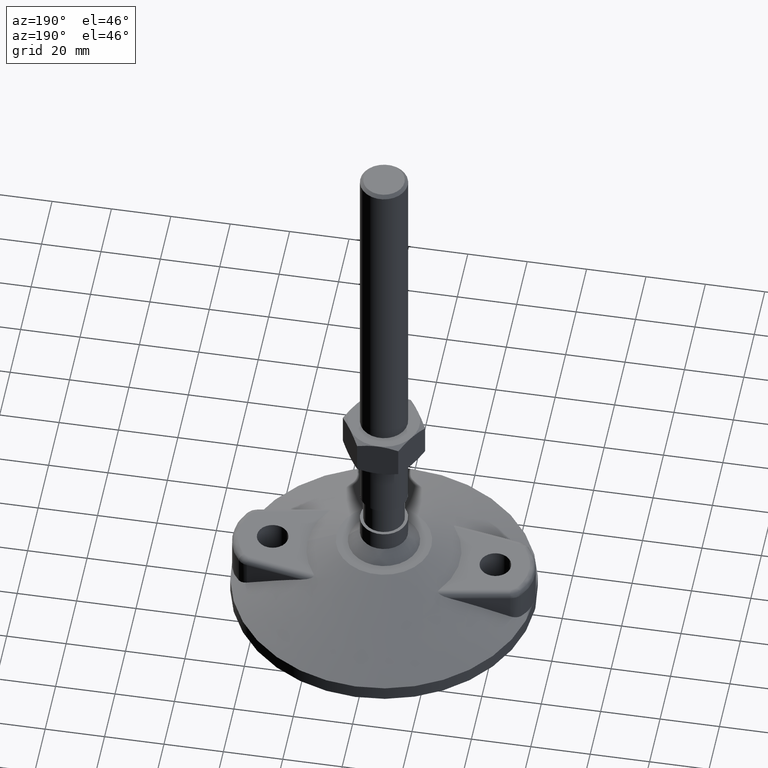
[diagram: clean part render]
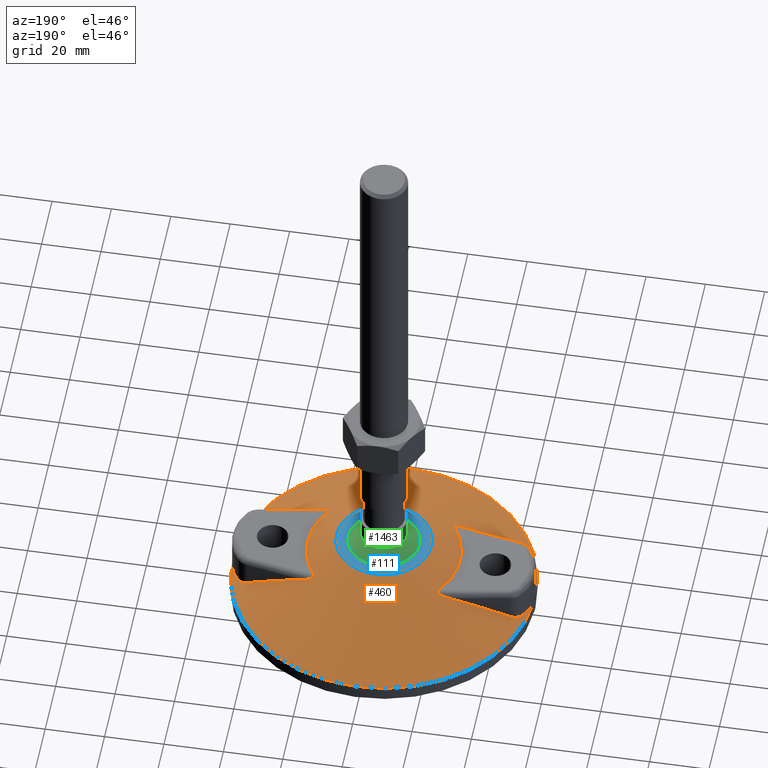
[diagram: same view with three faces highlighted in distinct colors, each labeled with its STEP entity id]
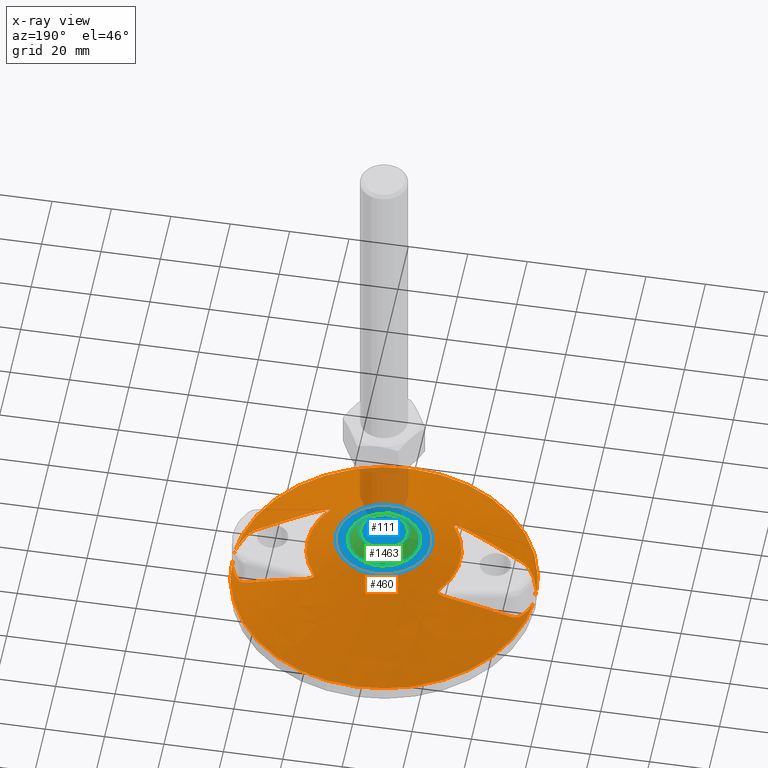
[diagram: x-ray of the same camera — body ghosted, the three highlighted faces saturated]
A machine part, auxiliary view with three faces highlighted in distinct colors.
The next image is the same camera in x-ray (body ghosted, the three faces saturated) — at least one of them is partly hidden behind the body in this view.
Their STEP definitions:

[orange] entity #460 — the highlighted face is a freeform B-spline surface patch.
#9=CARTESIAN_POINT('',(50.999999999999091,-0.000000129048203,5.000001508065495));
#10=VERTEX_POINT('',#9);
#26=CARTESIAN_POINT('',(-50.980811147480381,1.398890411647699,5.000001544170242));
#27=VERTEX_POINT('',#26);
#34=CARTESIAN_POINT('',(0.0,-0.000000129048203,5.000001508065495));
#35=DIRECTION('',(0.0,-0.000000025809560,1.000000000000000));
#36=DIRECTION('',(1.0,0.0,0.0));
#37=AXIS2_PLACEMENT_3D('',#34,#35,#36);
#38=CIRCLE('',#37,50.999999999999091);
#39=EDGE_CURVE('',#10,#27,#38,.T.);
#51=CARTESIAN_POINT('',(50.980811147480608,-1.398890669737739,5.000001471960742));
#52=VERTEX_POINT('',#51);
#59=CARTESIAN_POINT('',(-50.999999999999091,-0.000000128900865,5.000001508065493));
#60=VERTEX_POINT('',#59);
#61=CARTESIAN_POINT('',(0.0,-0.000000129048203,5.000001508065495));
#62=DIRECTION('',(0.0,-0.000000025809560,1.000000000000000));
#63=DIRECTION('',(1.0,0.0,0.0));
#64=AXIS2_PLACEMENT_3D('',#61,#62,#63);
#65=CIRCLE('',#64,50.999999999999091);
#66=EDGE_CURVE('',#60,#52,#65,.T.);
#91=CARTESIAN_POINT('',(15.999999999999091,-0.000000593619916,23.000001508065484));
#92=VERTEX_POINT('',#91);
#93=CARTESIAN_POINT('',(-15.999999999999091,-0.000000593619916,23.000001508065484));
#94=VERTEX_POINT('',#93);
#95=CARTESIAN_POINT('',(0.0,-0.000000593619916,23.000001508065484));
#96=DIRECTION('',(0.0,-0.000000025809560,1.000000000000000));
#97=DIRECTION('',(1.0,0.0,0.0));
#98=AXIS2_PLACEMENT_3D('',#95,#96,#97);
#99=CIRCLE('',#98,15.999999999999091);
#100=EDGE_CURVE('',#92,#94,#99,.T.);
#102=CARTESIAN_POINT('',(0.0,-0.000000593619916,23.000001508065484));
#103=DIRECTION('',(0.0,-0.000000025809560,1.000000000000000));
#104=DIRECTION('',(1.0,0.0,0.0));
#105=AXIS2_PLACEMENT_3D('',#102,#103,#104);
#106=CIRCLE('',#105,15.999999999999091);
#107=EDGE_CURVE('',#94,#92,#106,.T.);
#176=CARTESIAN_POINT('',(50.999999999999091,-0.000000129048203,5.000001508065495));
#177=CARTESIAN_POINT('',(50.999999999999453,50.999999870950880,5.000002824353048));
#178=CARTESIAN_POINT('',(3.649714E-013,50.999999870951235,5.000002824353048));
#179=CARTESIAN_POINT('',(-50.999999999998728,50.999999870951598,5.000002824353048));
#180=CARTESIAN_POINT('',(-50.999999999999091,-0.000000129047473,5.000001508065495));
#181=CARTESIAN_POINT('',(-50.999999999999453,-51.000000129046541,5.000000191777941));
#182=CARTESIAN_POINT('',(-3.649714E-013,-51.000000129046917,5.000000191777941));
#183=CARTESIAN_POINT('',(50.999999999998728,-51.000000129047280,5.000000191777941));
#184=CARTESIAN_POINT('',(50.999999999999091,-0.000000129048203,5.000001508065495));
#185=CARTESIAN_POINT('',(15.999999999999091,-0.000000593619916,23.000001508065484));
#186=CARTESIAN_POINT('',(15.999999999999091,15.999999406379169,23.000001921018441));
#187=CARTESIAN_POINT('',(0.0,15.999999406379169,23.000001921018441));
#188=CARTESIAN_POINT('',(-15.999999999999091,15.999999406379169,23.000001921018441));
#189=CARTESIAN_POINT('',(-15.999999999999091,-0.000000593619916,23.000001508065484));
#190=CARTESIAN_POINT('',(-15.999999999999091,-16.000000593618999,23.000001095112527));
#191=CARTESIAN_POINT('',(0.0,-16.000000593618999,23.000001095112527));
#192=CARTESIAN_POINT('',(15.999999999999091,-16.000000593618999,23.000001095112527));
#193=CARTESIAN_POINT('',(15.999999999999091,-0.000000593619916,23.000001508065484));
#201=(BOUNDED_SURFACE()B_SPLINE_SURFACE(2,1,((#176,#185),(#177,#186),(#178,#187),(#179,#188),(#180,#189),(#181,#190),(#182,#191),(#183,#192),(#184,#193)),.UNSPECIFIED.,.T.,.F.,.U.)B_SPLINE_SURFACE_WITH_KNOTS((3,2,2,2,3),(2,2),(0.0,0.250000000000000,0.500000000000000,0.750000000000000,1.0),(-39.357337308308850,0.0),.UNSPECIFIED.)GEOMETRIC_REPRESENTATION_ITEM()RATIONAL_B_SPLINE_SURFACE(((1.0,1.0),(0.707106781186548,0.707106781186548),(1.0,1.0),(0.707106781186548,0.707106781186548),(1.0,1.0),(0.707106781186548,0.707106781186548),(1.0,1.0),(0.707106781186548,0.707106781186548),(1.0,1.0)))REPRESENTATION_ITEM('')SURFACE());
#202=ORIENTED_EDGE('',*,*,#107,.F.);
#203=ORIENTED_EDGE('',*,*,#100,.F.);
#204=CARTESIAN_POINT('',(25.722222222221262,-0.000000464572622,18.000001508065491));
#205=VERTEX_POINT('',#204);
#206=CARTESIAN_POINT('',(25.722222222221305,-0.000000464572218,18.000001508065491));
#207=DIRECTION('',(-0.889287802318147,-0.000000011803942,0.457348012620761));
#208=VECTOR('',#207,10.932593696752450);
#209=LINE('',#206,#208);
#210=EDGE_CURVE('',#205,#92,#209,.T.);
#211=ORIENTED_EDGE('',*,*,#210,.F.);
#212=CARTESIAN_POINT('',(21.143162613055893,14.649210803179813,18.000001886155328));
#213=VERTEX_POINT('',#212);
#214=CARTESIAN_POINT('',(3.944305E-031,-0.000000464571713,18.000001508065484));
#215=DIRECTION('',(1.381194E-016,0.000000025809560,-1.000000000000000));
#216=DIRECTION('',(1.0,-3.535833E-014,1.381185E-016));
#217=AXIS2_PLACEMENT_3D('',#214,#215,#216);
#218=CIRCLE('',#217,25.722222222221262);
#219=EDGE_CURVE('',#213,#205,#218,.T.);
#220=ORIENTED_EDGE('',*,*,#219,.F.);
#221=CARTESIAN_POINT('',(24.905502350737606,16.016662072224790,16.000001921448693));
#222=VERTEX_POINT('',#221);
#223=CARTESIAN_POINT('',(24.905510881194914,16.016660568076077,16.000001921448654));
#224=CARTESIAN_POINT('',(24.368523235515340,16.111345973001335,16.205941526100055));
#225=CARTESIAN_POINT('',(23.614843569668210,16.201820354531264,16.501664863725495));
#226=CARTESIAN_POINT('',(22.642513514363827,16.202442730530493,16.909983411453684));
#227=CARTESIAN_POINT('',(22.054701576207208,16.145200728676173,17.171945831881132));
#228=CARTESIAN_POINT('',(21.600594150520237,16.033002141560246,17.394007420114097));
#229=CARTESIAN_POINT('',(21.321402885352654,15.909207563088785,17.547172561378328));
#230=CARTESIAN_POINT('',(21.139885871935576,15.788512299711329,17.659107641335048));
#231=CARTESIAN_POINT('',(21.015379545618543,15.662101873501342,17.749315618801226));
#232=CARTESIAN_POINT('',(20.927845829550506,15.504352220954388,17.833851213924497));
#233=CARTESIAN_POINT('',(20.893136377268092,15.347567159990831,17.896116149656070));
#234=CARTESIAN_POINT('',(20.902600165130252,15.164306328896600,17.947785129375028));
#235=CARTESIAN_POINT('',(20.970704490707931,14.926545626580264,17.990898343861652));
#236=CARTESIAN_POINT('',(21.071463721815007,14.752693597506550,18.000001888825494));
#237=CARTESIAN_POINT('',(21.143162613054983,14.649210803180722,18.000001886154642));
#238=B_SPLINE_CURVE_WITH_KNOTS('',3,(#223,#224,#225,#226,#227,#228,#229,#230,#231,#232,#233,#234,#235,#236,#237),.UNSPECIFIED.,.F.,.U.,(4,1,1,1,1,1,1,1,1,1,1,1,4),(0.0,1.749855970408196,2.436491691366094,3.161766479691344,3.684761264973928,3.985205893616242,4.183650107324858,4.418106244655253,4.577809481138798,4.777218453561154,4.928524910696078,5.145883000621560,5.524646632267313),.UNSPECIFIED.);
#239=EDGE_CURVE('',#222,#213,#238,.T.);
#240=ORIENTED_EDGE('',*,*,#239,.F.);
#241=CARTESIAN_POINT('',(43.946101486224279,12.659290929779672,7.708687347685885));
#242=VERTEX_POINT('',#241);
#243=CARTESIAN_POINT('',(24.905507839652113,16.016661104380400,16.000016678355045));
#244=CARTESIAN_POINT('',(25.390835917430426,15.931084674577200,15.813883571990967));
#245=CARTESIAN_POINT('',(27.419485481093616,15.573379042499504,15.023614962956010));
#246=CARTESIAN_POINT('',(30.862722368553705,14.966243514867529,13.605555621128904));
#247=CARTESIAN_POINT('',(36.735391466343799,13.930733570074153,11.051469760713720));
#248=CARTESIAN_POINT('',(41.048517740183570,13.170213087987577,9.067910575075938));
#249=CARTESIAN_POINT('',(43.946101486224279,12.659290929779672,7.708687347685883));
#250=B_SPLINE_CURVE_WITH_KNOTS('',3,(#243,#244,#245,#246,#247,#248,#249),.UNSPECIFIED.,.F.,.U.,(4,1,1,1,4),(6.034625624640960,7.615012138124984,12.653535907105029,17.352697149465612,27.076083084423665),.UNSPECIFIED.);
#251=EDGE_CURVE('',#222,#242,#250,.T.);
#252=ORIENTED_EDGE('',*,*,#251,.T.);
#253=CARTESIAN_POINT('',(46.944446728756247,10.905348677401889,6.442841662547860));
#254=VERTEX_POINT('',#253);
#255=CARTESIAN_POINT('',(43.946101486223824,12.659290929779672,7.708687347685880));
#256=CARTESIAN_POINT('',(44.157986439093520,12.621929898347844,7.609294551923363));
#257=CARTESIAN_POINT('',(44.744527941442811,12.479245719588107,7.339327265776765));
#258=CARTESIAN_POINT('',(45.588500422862580,12.102887562755313,6.971973499076979));
#259=CARTESIAN_POINT('',(46.374884227298708,11.527298705571411,6.653802342681258));
#260=CARTESIAN_POINT('',(46.777856537535172,11.108539754418416,6.502648795603792));
#261=CARTESIAN_POINT('',(46.944446728756247,10.905348677401889,6.442841662547860));
#262=B_SPLINE_CURVE_WITH_KNOTS('',3,(#255,#256,#257,#258,#259,#260,#261),.UNSPECIFIED.,.F.,.U.,(4,1,1,1,4),(0.0,0.711433557767527,1.979458702356273,2.964281160197235,3.773582366587916),.UNSPECIFIED.);
#263=EDGE_CURVE('',#242,#254,#262,.T.);
#264=ORIENTED_EDGE('',*,*,#263,.T.);
#265=CARTESIAN_POINT('',(46.944446728754656,10.905348677400070,6.442841662547856));
#266=CARTESIAN_POINT('',(47.428776176401016,10.314609082368406,6.268963743890299));
#267=CARTESIAN_POINT('',(48.577765737010168,8.715635518449744,5.860195068171113));
#268=CARTESIAN_POINT('',(49.961713408914648,5.909106735981368,5.375059048036866));
#269=CARTESIAN_POINT('',(50.789649193219930,2.813004850809193,5.083041474121105));
#270=CARTESIAN_POINT('',(50.978817927457385,0.835834614530540,5.010895166944205));
#271=CARTESIAN_POINT('',(50.999999999997272,-0.000000129049113,5.000001508065492));
#272=B_SPLINE_CURVE_WITH_KNOTS('',3,(#265,#266,#267,#268,#269,#270,#271),.UNSPECIFIED.,.F.,.U.,(4,1,1,1,4),(0.0,2.352015631416472,6.017033930442234,9.448856451936507,11.959644487945123),.UNSPECIFIED.);
#273=EDGE_CURVE('',#254,#10,#272,.T.);
#274=ORIENTED_EDGE('',*,*,#273,.T.);
#275=ORIENTED_EDGE('',*,*,#39,.T.);
#276=CARTESIAN_POINT('',(-48.014549455435144,10.365246472392755,5.966540124906850));
#277=VERTEX_POINT('',#276);
#278=CARTESIAN_POINT('',(-50.980811147480381,1.398890411647699,5.000001544170242));
#279=CARTESIAN_POINT('',(-50.945273659122563,2.071710654914568,5.008779996242147));
#280=CARTESIAN_POINT('',(-50.771090824890166,3.660385520460295,5.059622875929401));
#281=CARTESIAN_POINT('',(-50.163628544978110,6.112734368182828,5.251830312585487));
#282=CARTESIAN_POINT('',(-49.189094067773226,8.436264443294022,5.571000129794797));
#283=CARTESIAN_POINT('',(-48.384189615349101,9.808622580580050,5.841126318510642));
#284=CARTESIAN_POINT('',(-48.014549455435144,10.365246472392755,5.966540124906857));
#285=B_SPLINE_CURVE_WITH_KNOTS('',3,(#278,#279,#280,#281,#282,#283,#284),.UNSPECIFIED.,.F.,.U.,(4,1,1,1,4),(0.0,2.022629176124613,4.786599737474235,7.577207433580201,9.617888303699404),.UNSPECIFIED.);
#286=EDGE_CURVE('',#27,#277,#285,.T.);
#287=ORIENTED_EDGE('',*,*,#286,.T.);
#288=CARTESIAN_POINT('',(-44.717563838551314,12.523261311823262,7.346146955925327));
#289=VERTEX_POINT('',#288);
#290=CARTESIAN_POINT('',(-48.014549455437191,10.365246472393665,5.966540124906855));
#291=CARTESIAN_POINT('',(-47.848019610628057,10.616016005504207,6.023041403666531));
#292=CARTESIAN_POINT('',(-47.430373086146801,11.135364655942794,6.173873751649253));
#293=CARTESIAN_POINT('',(-46.575999655821875,11.848622314048043,6.513739724137540));
#294=CARTESIAN_POINT('',(-45.627408135581959,12.311500732026616,6.924414571233965));
#295=CARTESIAN_POINT('',(-44.961285003187072,12.480286697689735,7.231408647349684));
#296=CARTESIAN_POINT('',(-44.717563838551314,12.523261311823262,7.346146955925345));
#297=B_SPLINE_CURVE_WITH_KNOTS('',3,(#290,#291,#292,#293,#294,#295,#296),.UNSPECIFIED.,.F.,.U.,(4,1,1,1,4),(0.0,0.920200352312294,2.038589351430508,3.470929525088265,4.289933056395647),.UNSPECIFIED.);
#298=EDGE_CURVE('',#277,#289,#297,.T.);
#299=ORIENTED_EDGE('',*,*,#298,.T.);
#300=CARTESIAN_POINT('',(-24.905512481630581,16.016660285876242,16.000001921447826));
#301=VERTEX_POINT('',#300);
#302=CARTESIAN_POINT('',(-44.717563838551314,12.523261311823262,7.346146955925343));
#303=CARTESIAN_POINT('',(-42.103382992252477,12.984211895713088,8.576843063353829));
#304=CARTESIAN_POINT('',(-37.068949754941968,13.871918247910799,10.905999733740305));
#305=CARTESIAN_POINT('',(-30.463058270814376,15.036715073709050,13.791943864851710));
#306=CARTESIAN_POINT('',(-26.457073137016426,15.743078295480691,15.405007122835212));
#307=CARTESIAN_POINT('',(-24.905512702027611,16.016660247012407,16.000002514044350));
#308=B_SPLINE_CURVE_WITH_KNOTS('',3,(#302,#303,#304,#305,#306,#307),.UNSPECIFIED.,.F.,.U.,(4,1,1,4),(0.0,8.777885019393677,16.852426233862033,21.904650565738230),.UNSPECIFIED.);
#309=EDGE_CURVE('',#289,#301,#308,.T.);
#310=ORIENTED_EDGE('',*,*,#309,.T.);
#311=CARTESIAN_POINT('',(-21.143162613054074,14.649210803180722,18.000001886154674));
#312=VERTEX_POINT('',#311);
#313=CARTESIAN_POINT('',(-24.905510881195255,16.016660568076077,16.000001921447833));
#314=CARTESIAN_POINT('',(-24.398850535092947,16.105998452134372,16.194311032893900));
#315=CARTESIAN_POINT('',(-23.675455406118999,16.194850019557634,16.477882146297038));
#316=CARTESIAN_POINT('',(-22.697547222115304,16.205997372511774,16.885983757464246));
#317=CARTESIAN_POINT('',(-22.074087466847914,16.151276337101081,17.162087724177383));
#318=CARTESIAN_POINT('',(-21.589488032419922,16.029317305356017,17.399721016416294));
#319=CARTESIAN_POINT('',(-21.313581800359088,15.904855232826776,17.551734601025391));
#320=CARTESIAN_POINT('',(-21.135184157297090,15.784479852546610,17.662286006387713));
#321=CARTESIAN_POINT('',(-21.012921411775324,15.658640739326074,17.751393124334868));
#322=CARTESIAN_POINT('',(-20.926966965925658,15.501704934008558,17.835024898076501));
#323=CARTESIAN_POINT('',(-20.893033775056210,15.345594530303970,17.896759141314647));
#324=CARTESIAN_POINT('',(-20.902897242830477,15.162886381249336,17.948090060926692));
#325=CARTESIAN_POINT('',(-20.971125866166176,14.925798509306333,17.990943266280588));
#326=CARTESIAN_POINT('',(-21.071652779407941,14.752420731252641,18.000001888817760));
#327=CARTESIAN_POINT('',(-21.143162613057029,14.649210803179813,18.000001886153949));
#328=B_SPLINE_CURVE_WITH_KNOTS('',3,(#313,#314,#315,#316,#317,#318,#319,#320,#321,#322,#323,#324,#325,#326,#327),.UNSPECIFIED.,.F.,.U.,(4,1,1,1,1,1,1,1,1,1,1,1,4),(0.0,1.650869725793001,2.339864675178765,3.177577409040687,3.698344464052970,3.994688378333339,4.190609264651903,4.422415376702809,4.580578724796375,4.779100976606481,4.930038451895313,5.146891845682602,5.524649116528213),.UNSPECIFIED.);
#329=EDGE_CURVE('',#301,#312,#328,.T.);
#330=ORIENTED_EDGE('',*,*,#329,.T.);
#331=CARTESIAN_POINT('',(-21.143162613054756,-14.649211732323238,18.000001129975470));
#332=VERTEX_POINT('',#331);
#333=CARTESIAN_POINT('',(-3.944305E-031,-0.000000464571713,18.000001508065999));
#334=DIRECTION('',(1.381194E-016,0.000000025809560,-1.000000000000000));
#335=DIRECTION('',(1.0,-3.535833E-014,1.381185E-016));
#336=AXIS2_PLACEMENT_3D('',#333,#334,#335);
#337=CIRCLE('',#336,25.722222222220353);
#338=EDGE_CURVE('',#332,#312,#337,.T.);
#339=ORIENTED_EDGE('',*,*,#338,.F.);
#340=CARTESIAN_POINT('',(-24.905502350739539,-16.016662898130562,16.000001094682126));
#341=VERTEX_POINT('',#340);
#342=CARTESIAN_POINT('',(-24.905510881197301,-16.016661393979120,16.000001094682169));
#343=CARTESIAN_POINT('',(-24.368523235518182,-16.111346809534552,16.205940694445822));
#344=CARTESIAN_POINT('',(-23.614843569671393,-16.201821206327622,16.501664027402036));
#345=CARTESIAN_POINT('',(-22.642513514367465,-16.202443603404390,16.909982575097590));
#346=CARTESIAN_POINT('',(-22.054701576209254,-16.145201615072438,17.171944998480036));
#347=CARTESIAN_POINT('',(-21.600594150524103,-16.033003039417054,17.394006592504802));
#348=CARTESIAN_POINT('',(-21.321402885354246,-15.909208468855468,17.547171740158877));
#349=CARTESIAN_POINT('',(-21.139885871937622,-15.788513211254212,17.659106826346999));
#350=CARTESIAN_POINT('',(-21.015379545621727,-15.662102789700839,17.749314810337388));
#351=CARTESIAN_POINT('',(-20.927845829553007,-15.504353141518550,17.833850413604235));
#352=CARTESIAN_POINT('',(-20.893136377270139,-15.347568083769147,17.896115357428961));
#353=CARTESIAN_POINT('',(-20.902600165134118,-15.164307255339736,17.947784346607047));
#354=CARTESIAN_POINT('',(-20.970704490711114,-14.926546555251662,17.990897573367036));
#355=CARTESIAN_POINT('',(-21.071463721817508,-14.752694526646337,18.000001127304813));
#356=CARTESIAN_POINT('',(-21.143162613057257,-14.649211732320509,18.000001129975665));
#357=B_SPLINE_CURVE_WITH_KNOTS('',3,(#342,#343,#344,#345,#346,#347,#348,#349,#350,#351,#352,#353,#354,#355,#356),.UNSPECIFIED.,.F.,.U.,(4,1,1,1,1,1,1,1,1,1,1,1,4),(0.0,1.749855970406486,2.436491691364997,3.161766479690785,3.684761264974159,3.985205893617007,4.183650107325072,4.418106244656878,4.577809481140130,4.777218453562283,4.928524910698155,5.145883000622880,5.524646632268170),.UNSPECIFIED.);
#358=EDGE_CURVE('',#341,#332,#357,.T.);
#359=ORIENTED_EDGE('',*,*,#358,.F.);
#360=CARTESIAN_POINT('',(-43.946101486224052,-12.659291327695428,7.708686694224159));
#361=VERTEX_POINT('',#360);
#362=CARTESIAN_POINT('',(-24.905507839653939,-16.016661930286933,16.000015851588643));
#363=CARTESIAN_POINT('',(-25.390835917431730,-15.931085490875265,15.813882749642238));
#364=CARTESIAN_POINT('',(-27.419485481094053,-15.573379818002500,15.023614159072363));
#365=CARTESIAN_POINT('',(-30.862722368553477,-14.966244217172971,13.605554848583417));
#366=CARTESIAN_POINT('',(-36.735391466344254,-13.930734140541972,11.051469041621550));
#367=CARTESIAN_POINT('',(-41.048517740183797,-13.170213556065391,9.067909895240774));
#368=CARTESIAN_POINT('',(-43.946101486224279,-12.659291327695428,7.708686694224166));
#369=B_SPLINE_CURVE_WITH_KNOTS('',3,(#362,#363,#364,#365,#366,#367,#368),.UNSPECIFIED.,.F.,.U.,(4,1,1,1,4),(6.034625624642422,7.615012138125025,12.653535907104946,17.352697149465943,27.076083084423352),.UNSPECIFIED.);
#370=EDGE_CURVE('',#341,#361,#369,.T.);
#371=ORIENTED_EDGE('',*,*,#370,.T.);
#372=CARTESIAN_POINT('',(-46.944446728756020,-10.905349009975907,6.442841099623692));
#373=VERTEX_POINT('',#372);
#374=CARTESIAN_POINT('',(-43.946101486223938,-12.659291327695428,7.708686694224165));
#375=CARTESIAN_POINT('',(-44.157986439093634,-12.621930291133140,7.609293900390217));
#376=CARTESIAN_POINT('',(-44.744527941442584,-12.479246098436306,7.339326621608821));
#377=CARTESIAN_POINT('',(-45.588500422861557,-12.102887922639638,6.971972874337114));
#378=CARTESIAN_POINT('',(-46.374884227299049,-11.527299049034809,6.653801747652105));
#379=CARTESIAN_POINT('',(-46.777856537534603,-11.108540090079259,6.502648222191109));
#380=CARTESIAN_POINT('',(-46.944446728755793,-10.905349009974998,6.442841099623699));
#381=B_SPLINE_CURVE_WITH_KNOTS('',3,(#374,#375,#376,#377,#378,#379,#380),.UNSPECIFIED.,.F.,.U.,(4,1,1,1,4),(0.0,0.711433557767294,1.979458702355644,2.964281160196689,3.773582366587688),.UNSPECIFIED.);
#382=EDGE_CURVE('',#361,#373,#381,.T.);
#383=ORIENTED_EDGE('',*,*,#382,.T.);
#384=CARTESIAN_POINT('',(-46.944446728754087,-10.905349009973179,6.442841099623696));
#385=CARTESIAN_POINT('',(-47.428776176396241,-10.314609405971169,6.268963211461093));
#386=CARTESIAN_POINT('',(-48.577765736988113,-8.715635820974967,5.860194618285473));
#387=CARTESIAN_POINT('',(-49.961713408888272,-5.909107013500943,5.375058743023373));
#388=CARTESIAN_POINT('',(-50.789649193224705,-2.813005113205691,5.083041328913952));
#389=CARTESIAN_POINT('',(-50.978817927463865,-0.835834873124440,5.010895123797959));
#390=CARTESIAN_POINT('',(-50.999999999998977,-0.000000128901775,5.000001508065493));
#391=B_SPLINE_CURVE_WITH_KNOTS('',3,(#384,#385,#386,#387,#388,#389,#390),.UNSPECIFIED.,.F.,.U.,(4,1,1,1,4),(0.0,2.352015631396307,6.017033930351917,9.448856451839832,11.959644488089607),.UNSPECIFIED.);
#392=EDGE_CURVE('',#373,#60,#391,.T.);
#393=ORIENTED_EDGE('',*,*,#392,.T.);
#394=ORIENTED_EDGE('',*,*,#66,.T.);
#395=CARTESIAN_POINT('',(48.014549455435372,-10.365246780380403,5.966539589861844));
#396=VERTEX_POINT('',#395);
#397=CARTESIAN_POINT('',(50.980811147480608,-1.398890669737739,5.000001471960742));
#398=CARTESIAN_POINT('',(50.945443910180074,-2.068487603003632,5.008737834140153));
#399=CARTESIAN_POINT('',(50.771695160894978,-3.657182979959543,5.059436108508304));
#400=CARTESIAN_POINT('',(50.164874436644595,-6.109766727223359,5.251422087942471));
#401=CARTESIAN_POINT('',(49.189093857851503,-8.436264698423656,5.570999735865227));
#402=CARTESIAN_POINT('',(48.384189615351488,-9.808622882091186,5.841125812197407));
#403=CARTESIAN_POINT('',(48.014549455435599,-10.365246780380403,5.966539589861846));
#404=B_SPLINE_CURVE_WITH_KNOTS('',3,(#397,#398,#399,#400,#401,#402,#403),.UNSPECIFIED.,.F.,.U.,(4,1,1,1,4),(0.0,2.012925679492865,4.786598401618283,7.577206097753662,9.617886967883653),.UNSPECIFIED.);
#405=EDGE_CURVE('',#52,#396,#404,.T.);
#406=ORIENTED_EDGE('',*,*,#405,.T.);
#407=CARTESIAN_POINT('',(44.717563838551541,-12.523261691025255,7.346146309485397));
#408=VERTEX_POINT('',#407);
#409=CARTESIAN_POINT('',(48.014549455437418,-10.365246780381312,5.966539589861844));
#410=CARTESIAN_POINT('',(47.848019610628398,-10.616016316408604,6.023040855676990));
#411=CARTESIAN_POINT('',(47.430373086147256,-11.135364974634285,6.173873176851707));
#412=CARTESIAN_POINT('',(46.575999655822443,-11.848622650281868,6.513739112521504));
#413=CARTESIAN_POINT('',(45.627408135582527,-12.311501089458943,6.924413935724646));
#414=CARTESIAN_POINT('',(44.961285003187413,-12.480287070969098,7.231408003128041));
#415=CARTESIAN_POINT('',(44.717563838551541,-12.523261691025255,7.346146309485398));
#416=B_SPLINE_CURVE_WITH_KNOTS('',3,(#409,#410,#411,#412,#413,#414,#415),.UNSPECIFIED.,.F.,.U.,(4,1,1,1,4),(0.0,0.920200352311867,2.038589351430360,3.470929525088281,4.289933056395677),.UNSPECIFIED.);
#417=EDGE_CURVE('',#396,#408,#416,.T.);
#418=ORIENTED_EDGE('',*,*,#417,.T.);
#419=CARTESIAN_POINT('',(24.905512481628875,-16.016661111782014,16.000001094682339));
#420=VERTEX_POINT('',#419);
#421=CARTESIAN_POINT('',(44.717563838551541,-12.523261691024345,7.346146309485398));
#422=CARTESIAN_POINT('',(42.103382992252591,-12.984212338441466,8.576842393120044));
#423=CARTESIAN_POINT('',(37.068949754942196,-13.871918810868920,10.905999017683675));
#424=CARTESIAN_POINT('',(30.463058270813718,-15.036715785636652,13.791943088670259));
#425=CARTESIAN_POINT('',(26.457073137015996,-15.743079090675476,15.405006310191439));
#426=CARTESIAN_POINT('',(24.905512702026527,-16.016661072920503,16.000001687278683));
#427=B_SPLINE_CURVE_WITH_KNOTS('',3,(#421,#422,#423,#424,#425,#426),.UNSPECIFIED.,.F.,.U.,(4,1,1,4),(0.0,8.777885019393864,16.852426233862190,21.904650565740479),.UNSPECIFIED.);
#428=EDGE_CURVE('',#408,#420,#427,.T.);
#429=ORIENTED_EDGE('',*,*,#428,.T.);
#430=CARTESIAN_POINT('',(21.143162613054983,-14.649211732324147,18.000001129975654));
#431=VERTEX_POINT('',#430);
#432=CARTESIAN_POINT('',(24.905510881195141,-16.016661393981849,16.000001094682332));
#433=CARTESIAN_POINT('',(24.398850535092606,-16.105999288070052,16.194310201516942));
#434=CARTESIAN_POINT('',(23.675455406117635,-16.194850870130722,16.477881310333828));
#435=CARTESIAN_POINT('',(22.697547222113826,-16.205998244151488,16.885982920925585));
#436=CARTESIAN_POINT('',(22.074087466845185,-16.151277222992576,17.162086890462774));
#437=CARTESIAN_POINT('',(21.589488032418785,-16.029318203513867,17.399720188998305));
#438=CARTESIAN_POINT('',(21.313581800357724,-15.904856138832656,17.551733780030080));
#439=CARTESIAN_POINT('',(21.135184157296180,-15.784480764260479,17.662285191606969));
#440=CARTESIAN_POINT('',(21.012921411775324,-15.658641655639258,17.751392316048491));
#441=CARTESIAN_POINT('',(20.926966965923611,-15.501705854640932,17.835024097891658));
#442=CARTESIAN_POINT('',(20.893033775054619,-15.345595454121394,17.896758349188651));
#443=CARTESIAN_POINT('',(20.902897242826384,-15.162887307717028,17.948089278231997));
#444=CARTESIAN_POINT('',(20.971125866162311,-14.925799437984097,17.990942495825681));
#445=CARTESIAN_POINT('',(21.071652779406122,-14.752421660398795,18.000001127312053));
#446=CARTESIAN_POINT('',(21.143162613055893,-14.649211732324147,18.000001129975864));
#447=B_SPLINE_CURVE_WITH_KNOTS('',3,(#432,#433,#434,#435,#436,#437,#438,#439,#440,#441,#442,#443,#444,#445,#446),.UNSPECIFIED.,.F.,.U.,(4,1,1,1,1,1,1,1,1,1,1,1,4),(0.0,1.650869725793780,2.339864675180492,3.177577409043108,3.698344464054537,3.994688378334496,4.190609264651144,4.422415376701844,4.580578724794209,4.779100976604743,4.930038451895065,5.146891845681597,5.524649116531801),.UNSPECIFIED.);
#448=EDGE_CURVE('',#420,#431,#447,.T.);
#449=ORIENTED_EDGE('',*,*,#448,.T.);
#450=CARTESIAN_POINT('',(3.944305E-031,-0.000000464571713,18.000001508065484));
#451=DIRECTION('',(1.381194E-016,0.000000025809560,-1.000000000000000));
#452=DIRECTION('',(1.0,-3.535833E-014,1.381185E-016));
#453=AXIS2_PLACEMENT_3D('',#450,#451,#452);
#454=CIRCLE('',#453,25.722222222221262);
#455=EDGE_CURVE('',#205,#431,#454,.T.);
#456=ORIENTED_EDGE('',*,*,#455,.F.);
#457=ORIENTED_EDGE('',*,*,#210,.T.);
#458=EDGE_LOOP('',(#202,#203,#211,#220,#240,#252,#264,#274,#275,#287,#299,#310,#330,#339,#359,#371,#383,#393,#394,#406,#418,#429,#449,#456,#457));
#459=FACE_OUTER_BOUND('',#458,.T.);
#460=ADVANCED_FACE('',(#459),#201,.T.);

[blue] entity #111 — the highlighted planar face has unit normal (0, -0, 1).
#86=CARTESIAN_POINT('',(31.999999999998181,-32.000000593618097,23.000000682159570));
#87=DIRECTION('',(0.0,-0.000000025809560,1.000000000000000));
#88=DIRECTION('',(0.0,1.000000000000000,0.000000025809560));
#89=AXIS2_PLACEMENT_3D('',#86,#87,#88);
#90=PLANE('',#89);
#91=CARTESIAN_POINT('',(15.999999999999091,-0.000000593619916,23.000001508065484));
#92=VERTEX_POINT('',#91);
#93=CARTESIAN_POINT('',(-15.999999999999091,-0.000000593619916,23.000001508065484));
#94=VERTEX_POINT('',#93);
#95=CARTESIAN_POINT('',(0.0,-0.000000593619916,23.000001508065484));
#96=DIRECTION('',(0.0,-0.000000025809560,1.000000000000000));
#97=DIRECTION('',(1.0,0.0,0.0));
#98=AXIS2_PLACEMENT_3D('',#95,#96,#97);
#99=CIRCLE('',#98,15.999999999999091);
#100=EDGE_CURVE('',#92,#94,#99,.T.);
#101=ORIENTED_EDGE('',*,*,#100,.T.);
#102=CARTESIAN_POINT('',(0.0,-0.000000593619916,23.000001508065484));
#103=DIRECTION('',(0.0,-0.000000025809560,1.000000000000000));
#104=DIRECTION('',(1.0,0.0,0.0));
#105=AXIS2_PLACEMENT_3D('',#102,#103,#104);
#106=CIRCLE('',#105,15.999999999999091);
#107=EDGE_CURVE('',#94,#92,#106,.T.);
#108=ORIENTED_EDGE('',*,*,#107,.T.);
#109=EDGE_LOOP('',(#101,#108));
#110=FACE_OUTER_BOUND('',#109,.T.);
#111=ADVANCED_FACE('',(#110),#90,.T.);

[green] entity #1463 — the highlighted face is a freeform B-spline surface patch.
#1377=CARTESIAN_POINT('',(-12.000000000000909,-0.000000593621735,23.000001508065417));
#1378=VERTEX_POINT('',#1377);
#1379=CARTESIAN_POINT('',(12.000000000000455,-0.000000593619916,23.000001508065417));
#1380=VERTEX_POINT('',#1379);
#1381=CARTESIAN_POINT('',(-2.273737E-013,-0.000000593620825,23.000001508065417));
#1382=DIRECTION('',(1.956139E-021,-0.000000025809567,1.000000000000000));
#1383=DIRECTION('',(1.0,7.579123E-014,0.0));
#1384=AXIS2_PLACEMENT_3D('',#1381,#1382,#1383);
#1385=CIRCLE('',#1384,12.000000000000682);
#1386=EDGE_CURVE('',#1378,#1380,#1385,.T.);
#1388=CARTESIAN_POINT('',(-2.273737E-013,-0.000000593620825,23.000001508065417));
#1389=DIRECTION('',(1.956139E-021,-0.000000025809567,1.000000000000000));
#1390=DIRECTION('',(1.0,7.579123E-014,0.0));
#1391=AXIS2_PLACEMENT_3D('',#1388,#1389,#1390);
#1392=CIRCLE('',#1391,12.000000000000682);
#1393=EDGE_CURVE('',#1380,#1378,#1392,.T.);
#1398=CARTESIAN_POINT('',(12.000000000000416,-0.000000593619916,23.000001508065417));
#1399=CARTESIAN_POINT('',(11.999999999999506,11.999999406380722,23.000001817780216));
#1400=CARTESIAN_POINT('',(-1.136868E-012,11.999999406379814,23.000001817780216));
#1401=CARTESIAN_POINT('',(-12.000000000001780,11.999999406378905,23.000001817780216));
#1402=CARTESIAN_POINT('',(-12.000000000000870,-0.000000593621735,23.000001508065417));
#1403=CARTESIAN_POINT('',(-11.999999999999961,-12.000000593622374,23.000001198350621));
#1404=CARTESIAN_POINT('',(6.821210E-013,-12.000000593621465,23.000001198350617));
#1405=CARTESIAN_POINT('',(12.000000000001325,-12.000000593620555,23.000001198350621));
#1406=CARTESIAN_POINT('',(12.000000000000416,-0.000000593619916,23.000001508065417));
#1407=CARTESIAN_POINT('',(10.399999999996510,-0.000000655562883,25.400001508066421));
#1408=CARTESIAN_POINT('',(10.399999999995607,10.399999344433851,25.400001776485912));
#1409=CARTESIAN_POINT('',(-1.129730E-012,10.399999344432949,25.400001776485912));
#1410=CARTESIAN_POINT('',(-10.399999999997867,10.399999344432047,25.400001776485912));
#1411=CARTESIAN_POINT('',(-10.399999999996965,-0.000000655564688,25.400001508066421));
#1412=CARTESIAN_POINT('',(-10.399999999996062,-10.400000655561421,25.400001239646929));
#1413=CARTESIAN_POINT('',(6.749825E-013,-10.400000655560518,25.400001239646929));
#1414=CARTESIAN_POINT('',(10.399999999997412,-10.400000655559616,25.400001239646929));
#1415=CARTESIAN_POINT('',(10.399999999996510,-0.000000655562883,25.400001508066421));
#1416=CARTESIAN_POINT('',(7.999999999992269,-0.000000696858220,27.000001508065473));
#1417=CARTESIAN_POINT('',(7.999999999991398,7.999999303134273,27.000001714542005));
#1418=CARTESIAN_POINT('',(-1.098735E-012,7.999999303133402,27.000001714542005));
#1419=CARTESIAN_POINT('',(-7.999999999993595,7.999999303132531,27.000001714542005));
#1420=CARTESIAN_POINT('',(-7.999999999992724,-0.000000696859963,27.000001508065473));
#1421=CARTESIAN_POINT('',(-7.999999999991853,-8.000000696852457,27.000001301588942));
#1422=CARTESIAN_POINT('',(6.439881E-013,-8.000000696851586,27.000001301588942));
#1423=CARTESIAN_POINT('',(7.999999999993141,-8.000000696850714,27.000001301588942));
#1424=CARTESIAN_POINT('',(7.999999999992269,-0.000000696858220,27.000001508065473));
#1432=(BOUNDED_SURFACE()B_SPLINE_SURFACE(2,2,((#1398,#1407,#1416),(#1399,#1408,#1417),(#1400,#1409,#1418),(#1401,#1410,#1419),(#1402,#1411,#1420),(#1403,#1412,#1421),(#1404,#1413,#1422),(#1405,#1414,#1423),(#1406,#1415,#1424)),.UNSPECIFIED.,.T.,.F.,.U.)B_SPLINE_SURFACE_WITH_KNOTS((3,2,2,2,3),(3,3),(0.0,0.250000000000000,0.500000000000000,0.750000000000000,1.0),(0.0,1.0),.UNSPECIFIED.)GEOMETRIC_REPRESENTATION_ITEM()RATIONAL_B_SPLINE_SURFACE(((1.0,0.980580675690905,1.0),(0.707106781186548,0.693375245281526,0.707106781186548),(1.0,0.980580675690905,1.0),(0.707106781186548,0.693375245281526,0.707106781186548),(1.0,0.980580675690905,1.0),(0.707106781186548,0.693375245281526,0.707106781186548),(1.0,0.980580675690905,1.0),(0.707106781186548,0.693375245281526,0.707106781186548),(1.0,0.980580675690905,1.0)))REPRESENTATION_ITEM('')SURFACE());
#1433=ORIENTED_EDGE('',*,*,#1393,.T.);
#1434=ORIENTED_EDGE('',*,*,#1386,.T.);
#1435=CARTESIAN_POINT('',(7.999999999992269,-0.000000696859388,27.000001508065473));
#1436=VERTEX_POINT('',#1435);
#1437=CARTESIAN_POINT('',(2.264855E-013,-0.000000387143700,15.000001508049117));
#1438=DIRECTION('',(1.967659E-014,-1.000000000000000,-0.000000025809556));
#1439=DIRECTION('',(0.832050294337326,-0.000000014316550,0.554700196226005));
#1440=AXIS2_PLACEMENT_3D('',#1437,#1438,#1439);
#1441=CIRCLE('',#1440,14.422205101865156);
#1442=EDGE_CURVE('',#1380,#1436,#1441,.T.);
#1443=ORIENTED_EDGE('',*,*,#1442,.T.);
#1444=CARTESIAN_POINT('',(-7.999999999992724,-0.000000696859388,27.000001508065470));
#1445=VERTEX_POINT('',#1444);
#1446=CARTESIAN_POINT('',(-2.273737E-013,-0.000000696859388,27.000001508065470));
#1447=DIRECTION('',(0.0,-0.000000025809567,1.000000000000000));
#1448=DIRECTION('',(1.0,0.0,0.0));
#1449=AXIS2_PLACEMENT_3D('',#1446,#1447,#1448);
#1450=CIRCLE('',#1449,7.999999999992497);
#1451=EDGE_CURVE('',#1445,#1436,#1450,.T.);
#1452=ORIENTED_EDGE('',*,*,#1451,.F.);
#1453=CARTESIAN_POINT('',(-2.273737E-013,-0.000000696859388,27.000001508065470));
#1454=DIRECTION('',(0.0,-0.000000025809567,1.000000000000000));
#1455=DIRECTION('',(1.0,0.0,0.0));
#1456=AXIS2_PLACEMENT_3D('',#1453,#1454,#1455);
#1457=CIRCLE('',#1456,7.999999999992497);
#1458=EDGE_CURVE('',#1436,#1445,#1457,.T.);
#1459=ORIENTED_EDGE('',*,*,#1458,.F.);
#1460=ORIENTED_EDGE('',*,*,#1442,.F.);
#1461=EDGE_LOOP('',(#1433,#1434,#1443,#1452,#1459,#1460));
#1462=FACE_OUTER_BOUND('',#1461,.T.);
#1463=ADVANCED_FACE('',(#1462),#1432,.T.);